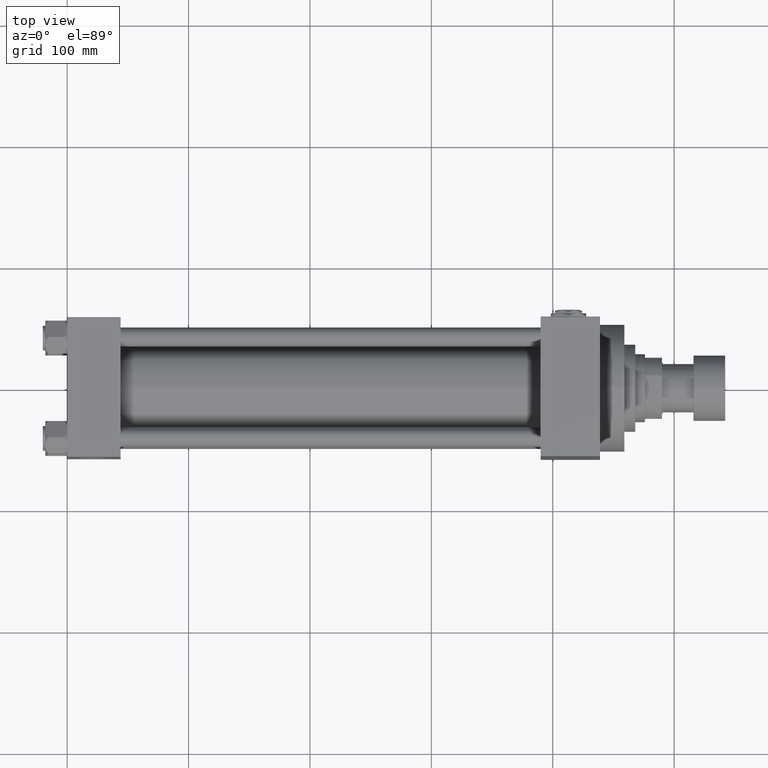
[diagram: clean part render]
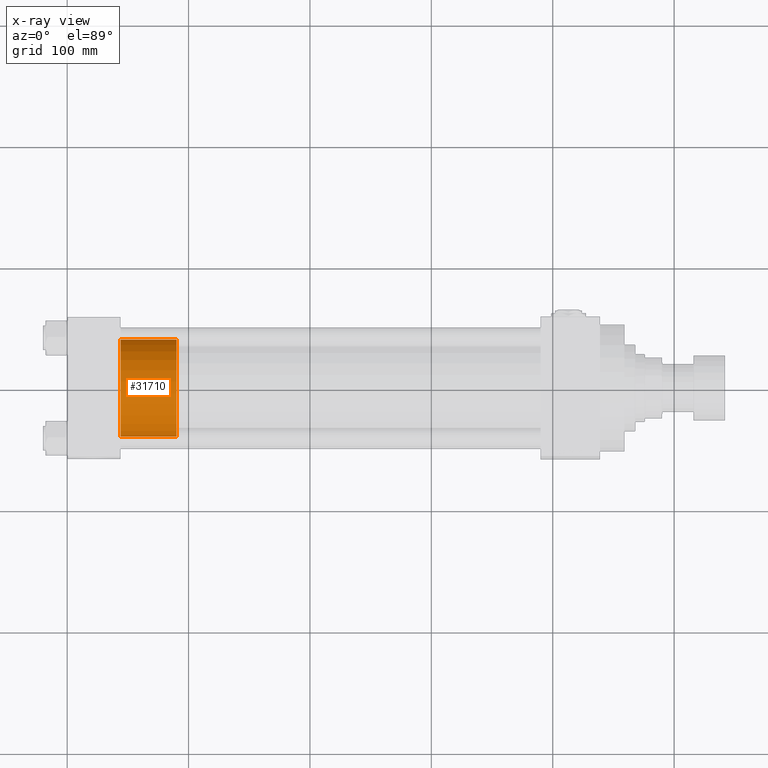
[diagram: x-ray — body ghosted, one internal face saturated and labeled with its STEP entity id]
A machine part, top view, then the same camera in x-ray: the body is ghosted and one INTERNAL B-rep face — a face not visible from any outside direction — is saturated and labeled: STEP entity #31710.
In plain terms, the highlighted cylindrical surface (partial cylindrical patch) has radius 40 mm, axis along (-1, 0, 0).
Its self-contained STEP definition (entity closure, byte-faithful):
#166 = LINE ( 'NONE', #28000, #42933 ) ;
#2211 = EDGE_CURVE ( 'NONE', #12297, #4563, #166, .T. ) ;
#2466 = VERTEX_POINT ( 'NONE', #24906 ) ;
#2697 = CYLINDRICAL_SURFACE ( 'NONE', #33153, 40.00000000000000000 ) ;
#2950 = DIRECTION ( 'NONE',  ( -0.000000000000000000, -0.000000000000000000, -1.000000000000000000 ) ) ;
#4424 = DIRECTION ( 'NONE',  ( -0.000000000000000000, -0.000000000000000000, -1.000000000000000000 ) ) ;
#4563 = VERTEX_POINT ( 'NONE', #39627 ) ;
#6207 = CARTESIAN_POINT ( 'NONE',  ( 0.000000000000000000, 0.000000000000000000, 46.00000000000000000 ) ) ;
#7807 = EDGE_LOOP ( 'NONE', ( #42442, #16103, #37841, #27342 ) ) ;
#12297 = VERTEX_POINT ( 'NONE', #42758 ) ;
#13492 = DIRECTION ( 'NONE',  ( 1.000000000000000000, 0.000000000000000000, 0.000000000000000000 ) ) ;
#14527 = AXIS2_PLACEMENT_3D ( 'NONE', #21036, #39603, #13492 ) ;
#14539 = EDGE_CURVE ( 'NONE', #12297, #2466, #28908, .T. ) ;
#15660 = AXIS2_PLACEMENT_3D ( 'NONE', #28408, #32649, #47963 ) ;
#16103 = ORIENTED_EDGE ( 'NONE', *, *, #14539, .F. ) ;
#21036 = CARTESIAN_POINT ( 'NONE',  ( 0.000000000000000000, 0.000000000000000000, 46.00000000000000000 ) ) ;
#21778 = FACE_OUTER_BOUND ( 'NONE', #7807, .T. ) ;
#21865 = LINE ( 'NONE', #26614, #36560 ) ;
#22075 = CIRCLE ( 'NONE', #15660, 40.00000000000000000 ) ;
#24906 = CARTESIAN_POINT ( 'NONE',  ( 40.00000000000000000, 4.898587196589413026E-15, 46.00000000000000000 ) ) ;
#26614 = CARTESIAN_POINT ( 'NONE',  ( 40.00000000000000000, 4.898587196589413026E-15, 46.00000000000000000 ) ) ;
#27342 = ORIENTED_EDGE ( 'NONE', *, *, #35064, .T. ) ;
#28000 = CARTESIAN_POINT ( 'NONE',  ( -40.00000000000000000, 0.000000000000000000, 46.00000000000000000 ) ) ;
#28408 = CARTESIAN_POINT ( 'NONE',  ( 0.000000000000000000, 0.000000000000000000, 0.000000000000000000 ) ) ;
#28908 = CIRCLE ( 'NONE', #14527, 40.00000000000000000 ) ;
#29527 = DIRECTION ( 'NONE',  ( -1.000000000000000000, 0.000000000000000000, 0.000000000000000000 ) ) ;
#31710 = ADVANCED_FACE ( 'NONE', ( #21778 ), #2697, .T. ) ;
#32649 = DIRECTION ( 'NONE',  ( 0.000000000000000000, 0.000000000000000000, 1.000000000000000000 ) ) ;
#32711 = VERTEX_POINT ( 'NONE', #47576 ) ;
#33153 = AXIS2_PLACEMENT_3D ( 'NONE', #6207, #2950, #29527 ) ;
#34126 = DIRECTION ( 'NONE',  ( -0.000000000000000000, -0.000000000000000000, -1.000000000000000000 ) ) ;
#35064 = EDGE_CURVE ( 'NONE', #4563, #32711, #22075, .T. ) ;
#36560 = VECTOR ( 'NONE', #34126, 1000.000000000000000 ) ;
#37841 = ORIENTED_EDGE ( 'NONE', *, *, #2211, .T. ) ;
#39603 = DIRECTION ( 'NONE',  ( 0.000000000000000000, 0.000000000000000000, 1.000000000000000000 ) ) ;
#39627 = CARTESIAN_POINT ( 'NONE',  ( -40.00000000000000000, 0.000000000000000000, 0.000000000000000000 ) ) ;
#41621 = EDGE_CURVE ( 'NONE', #2466, #32711, #21865, .T. ) ;
#42442 = ORIENTED_EDGE ( 'NONE', *, *, #41621, .F. ) ;
#42758 = CARTESIAN_POINT ( 'NONE',  ( -40.00000000000000000, 0.000000000000000000, 46.00000000000000000 ) ) ;
#42933 = VECTOR ( 'NONE', #4424, 1000.000000000000000 ) ;
#47576 = CARTESIAN_POINT ( 'NONE',  ( 40.00000000000000000, 4.898587196589413026E-15, 0.000000000000000000 ) ) ;
#47963 = DIRECTION ( 'NONE',  ( 1.000000000000000000, 0.000000000000000000, 0.000000000000000000 ) ) ;